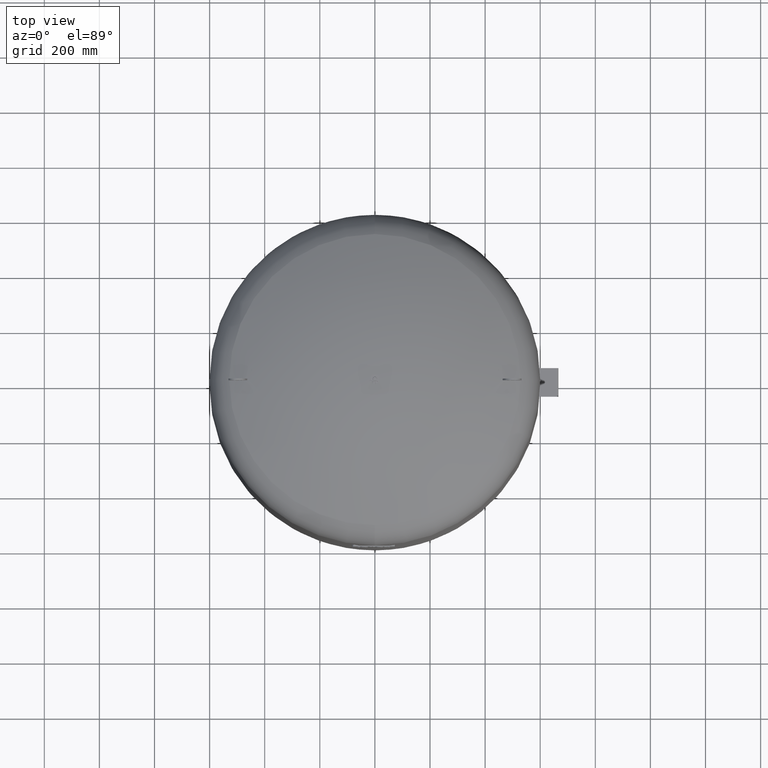
[diagram: clean part render]
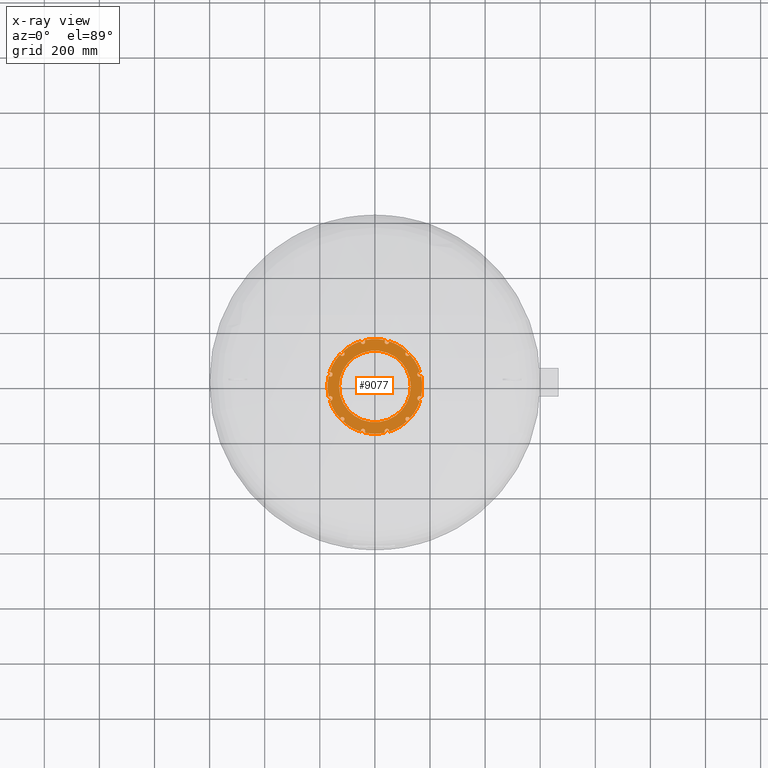
[diagram: x-ray — body ghosted, one internal face saturated and labeled with its STEP entity id]
A machine part, top view, then the same camera in x-ray: the body is ghosted and one INTERNAL B-rep face — a face not visible from any outside direction — is saturated and labeled: STEP entity #9077.
In plain terms, the highlighted planar face has unit normal (0, 0, -1).
Its self-contained STEP definition (entity closure, byte-faithful):
#3084=CARTESIAN_POINT('',(130.199999999999990,-1.108305E-014,407.0));
#3085=VERTEX_POINT('',#3084);
#3101=CARTESIAN_POINT('',(-130.199999999999990,-2.702743E-014,407.0));
#3102=VERTEX_POINT('',#3101);
#3109=CARTESIAN_POINT('',(0.0,-1.108305E-014,407.0));
#3110=DIRECTION('',(0.0,0.0,1.0));
#3111=DIRECTION('',(1.0,0.0,0.0));
#3112=AXIS2_PLACEMENT_3D('',#3109,#3110,#3111);
#3113=CIRCLE('',#3112,130.199999999999990);
#3114=EDGE_CURVE('',#3085,#3102,#3113,.T.);
#3236=CARTESIAN_POINT('',(-116.731667505312730,126.255773339000750,407.0));
#3237=VERTEX_POINT('',#3236);
#3247=CARTESIAN_POINT('',(-110.440385848746640,118.440385848746840,407.0));
#3248=VERTEX_POINT('',#3247);
#3249=CARTESIAN_POINT('',(-118.440385848746640,118.440385848746840,407.0));
#3250=DIRECTION('',(0.0,0.0,1.0));
#3251=DIRECTION('',(-1.0,0.0,0.0));
#3252=AXIS2_PLACEMENT_3D('',#3249,#3250,#3251);
#3253=CIRCLE('',#3252,8.0);
#3254=EDGE_CURVE('',#3248,#3237,#3253,.T.);
#3467=CARTESIAN_POINT('',(-164.220476155219640,50.974873333368336,407.0));
#3468=VERTEX_POINT('',#3467);
#3478=CARTESIAN_POINT('',(-154.864372673143440,47.352190054672398,407.0));
#3479=VERTEX_POINT('',#3478);
#3480=CARTESIAN_POINT('',(-161.792575903418940,43.352190054672391,407.0));
#3481=DIRECTION('',(-2.651438E-017,-1.530808E-017,1.000000000000000));
#3482=DIRECTION('',(-0.866025403784439,-0.500000000000000,-3.061617E-017));
#3483=AXIS2_PLACEMENT_3D('',#3480,#3481,#3482);
#3484=CIRCLE('',#3483,8.0);
#3485=EDGE_CURVE('',#3479,#3468,#3484,.T.);
#3618=CARTESIAN_POINT('',(-167.706540838680980,-37.964702816218875,407.0));
#3619=VERTEX_POINT('',#3618);
#3629=CARTESIAN_POINT('',(-157.792575903419050,-36.423986824396572,407.0));
#3630=VERTEX_POINT('',#3629);
#3631=CARTESIAN_POINT('',(-161.792575903419050,-43.352190054672079,407.0));
#3632=DIRECTION('',(-2.651438E-017,-4.592425E-017,1.0));
#3633=DIRECTION('',(-0.500000000000000,-0.866025403784439,-5.302876E-017));
#3634=AXIS2_PLACEMENT_3D('',#3631,#3632,#3633);
#3635=CIRCLE('',#3634,8.0);
#3636=EDGE_CURVE('',#3630,#3619,#3635,.T.);
#3769=CARTESIAN_POINT('',(-126.255773339000740,-116.731667505312670,407.0));
#3770=VERTEX_POINT('',#3769);
#3780=CARTESIAN_POINT('',(-118.440385848746890,-110.440385848746640,407.0));
#3781=VERTEX_POINT('',#3780);
#3782=CARTESIAN_POINT('',(-118.440385848746890,-118.440385848746640,407.0));
#3783=DIRECTION('',(0.0,0.0,1.0));
#3784=DIRECTION('',(0.0,-1.0,0.0));
#3785=AXIS2_PLACEMENT_3D('',#3782,#3783,#3784);
#3786=CIRCLE('',#3785,8.0);
#3787=EDGE_CURVE('',#3781,#3770,#3786,.T.);
#3920=CARTESIAN_POINT('',(-50.974873333368357,-164.220476155219590,407.0));
#3921=VERTEX_POINT('',#3920);
#3931=CARTESIAN_POINT('',(-47.352190054672441,-154.864372673143440,407.0));
#3932=VERTEX_POINT('',#3931);
#3933=CARTESIAN_POINT('',(-43.352190054672434,-161.792575903418940,407.0));
#3934=DIRECTION('',(2.651438E-017,-4.592425E-017,1.000000000000000));
#3935=DIRECTION('',(0.500000000000000,-0.866025403784439,-5.302876E-017));
#3936=AXIS2_PLACEMENT_3D('',#3933,#3934,#3935);
#3937=CIRCLE('',#3936,8.0);
#3938=EDGE_CURVE('',#3932,#3921,#3937,.T.);
#4071=CARTESIAN_POINT('',(37.964702816218818,-167.706540838680980,407.0));
#4072=VERTEX_POINT('',#4071);
#4082=CARTESIAN_POINT('',(36.423986824396515,-157.792575903419050,407.0));
#4083=VERTEX_POINT('',#4082);
#4084=CARTESIAN_POINT('',(43.352190054672022,-161.792575903419050,407.0));
#4085=DIRECTION('',(2.651438E-017,-1.530808E-017,1.000000000000000));
#4086=DIRECTION('',(0.866025403784439,-0.500000000000000,-3.061617E-017));
#4087=AXIS2_PLACEMENT_3D('',#4084,#4085,#4086);
#4088=CIRCLE('',#4087,8.0);
#4089=EDGE_CURVE('',#4083,#4072,#4088,.T.);
#4222=CARTESIAN_POINT('',(116.731667505312710,-126.255773339000750,407.0));
#4223=VERTEX_POINT('',#4222);
#4233=CARTESIAN_POINT('',(110.440385848746620,-118.440385848746840,407.0));
#4234=VERTEX_POINT('',#4233);
#4235=CARTESIAN_POINT('',(118.440385848746620,-118.440385848746840,407.0));
#4236=DIRECTION('',(0.0,0.0,1.0));
#4237=DIRECTION('',(1.0,0.0,0.0));
#4238=AXIS2_PLACEMENT_3D('',#4235,#4236,#4237);
#4239=CIRCLE('',#4238,8.0);
#4240=EDGE_CURVE('',#4234,#4223,#4239,.T.);
#4373=CARTESIAN_POINT('',(164.220476155219590,-50.974873333368372,407.0));
#4374=VERTEX_POINT('',#4373);
#4384=CARTESIAN_POINT('',(154.864372673143440,-47.352190054672455,407.0));
#4385=VERTEX_POINT('',#4384);
#4386=CARTESIAN_POINT('',(161.792575903418940,-43.352190054672448,407.0));
#4387=DIRECTION('',(-2.651438E-017,-1.530808E-017,1.000000000000000));
#4388=DIRECTION('',(0.866025403784439,0.500000000000000,3.061617E-017));
#4389=AXIS2_PLACEMENT_3D('',#4386,#4387,#4388);
#4390=CIRCLE('',#4389,8.0);
#4391=EDGE_CURVE('',#4385,#4374,#4390,.T.);
#4524=CARTESIAN_POINT('',(167.706540838681060,37.964702816218789,407.0));
#4525=VERTEX_POINT('',#4524);
#4535=CARTESIAN_POINT('',(157.792575903419050,36.423986824396472,407.0));
#4536=VERTEX_POINT('',#4535);
#4537=CARTESIAN_POINT('',(161.792575903419050,43.352190054671979,407.0));
#4538=DIRECTION('',(-2.651438E-017,-4.592425E-017,1.0));
#4539=DIRECTION('',(0.500000000000000,0.866025403784438,5.302876E-017));
#4540=AXIS2_PLACEMENT_3D('',#4537,#4538,#4539);
#4541=CIRCLE('',#4540,8.0);
#4542=EDGE_CURVE('',#4536,#4525,#4541,.T.);
#4675=CARTESIAN_POINT('',(126.255773339000750,116.731667505312690,407.0));
#4676=VERTEX_POINT('',#4675);
#4686=CARTESIAN_POINT('',(118.440385848746840,110.440385848746600,407.0));
#4687=VERTEX_POINT('',#4686);
#4688=CARTESIAN_POINT('',(118.440385848746840,118.440385848746600,407.0));
#4689=DIRECTION('',(0.0,0.0,1.0));
#4690=DIRECTION('',(0.0,1.0,0.0));
#4691=AXIS2_PLACEMENT_3D('',#4688,#4689,#4690);
#4692=CIRCLE('',#4691,8.000000000000002);
#4693=EDGE_CURVE('',#4687,#4676,#4692,.T.);
#4826=CARTESIAN_POINT('',(50.974873333368436,164.220476155219610,407.0));
#4827=VERTEX_POINT('',#4826);
#4837=CARTESIAN_POINT('',(47.352190054672491,154.864372673143410,407.0));
#4838=VERTEX_POINT('',#4837);
#4839=CARTESIAN_POINT('',(43.352190054672491,161.792575903418910,407.0));
#4840=DIRECTION('',(2.651438E-017,-4.592425E-017,1.0));
#4841=DIRECTION('',(-0.499999999999999,0.866025403784439,5.302876E-017));
#4842=AXIS2_PLACEMENT_3D('',#4839,#4840,#4841);
#4843=CIRCLE('',#4842,8.0);
#4844=EDGE_CURVE('',#4838,#4827,#4843,.T.);
#4977=CARTESIAN_POINT('',(-37.964702816218804,167.706540838681060,407.0));
#4978=VERTEX_POINT('',#4977);
#4988=CARTESIAN_POINT('',(-36.423986824396486,157.792575903419050,407.0));
#4989=VERTEX_POINT('',#4988);
#4990=CARTESIAN_POINT('',(-43.352190054671993,161.792575903419050,407.0));
#4991=DIRECTION('',(2.651438E-017,-1.530808E-017,1.0));
#4992=DIRECTION('',(-0.866025403784438,0.500000000000000,3.061617E-017));
#4993=AXIS2_PLACEMENT_3D('',#4990,#4991,#4992);
#4994=CIRCLE('',#4993,8.0);
#4995=EDGE_CURVE('',#4989,#4978,#4994,.T.);
#5105=CARTESIAN_POINT('',(-50.974873333367938,164.220476155219790,407.0));
#5106=VERTEX_POINT('',#5105);
#5107=CARTESIAN_POINT('',(-43.352190054671993,161.792575903419050,407.0));
#5108=DIRECTION('',(2.651438E-017,-1.530808E-017,1.0));
#5109=DIRECTION('',(-0.866025403784438,0.500000000000000,3.061617E-017));
#5110=AXIS2_PLACEMENT_3D('',#5107,#5108,#5109);
#5111=CIRCLE('',#5110,8.0);
#5112=EDGE_CURVE('',#5106,#4989,#5111,.T.);
#5390=CARTESIAN_POINT('',(37.964702816219322,167.706540838680950,407.0));
#5391=VERTEX_POINT('',#5390);
#5392=CARTESIAN_POINT('',(43.352190054672491,161.792575903418910,407.0));
#5393=DIRECTION('',(2.651438E-017,-4.592425E-017,1.0));
#5394=DIRECTION('',(-0.499999999999999,0.866025403784439,5.302876E-017));
#5395=AXIS2_PLACEMENT_3D('',#5392,#5393,#5394);
#5396=CIRCLE('',#5395,8.0);
#5397=EDGE_CURVE('',#5391,#4838,#5396,.T.);
#5675=CARTESIAN_POINT('',(116.731667505312940,126.255773339000510,407.0));
#5676=VERTEX_POINT('',#5675);
#5677=CARTESIAN_POINT('',(118.440385848746840,118.440385848746600,407.0));
#5678=DIRECTION('',(0.0,0.0,1.0));
#5679=DIRECTION('',(0.0,1.0,0.0));
#5680=AXIS2_PLACEMENT_3D('',#5677,#5678,#5679);
#5681=CIRCLE('',#5680,8.000000000000002);
#5682=EDGE_CURVE('',#5676,#4687,#5681,.T.);
#5960=CARTESIAN_POINT('',(164.220476155219790,50.974873333367924,407.0));
#5961=VERTEX_POINT('',#5960);
#5962=CARTESIAN_POINT('',(161.792575903419050,43.352190054671979,407.0));
#5963=DIRECTION('',(-2.651438E-017,-4.592425E-017,1.0));
#5964=DIRECTION('',(0.500000000000000,0.866025403784438,5.302876E-017));
#5965=AXIS2_PLACEMENT_3D('',#5962,#5963,#5964);
#5966=CIRCLE('',#5965,8.0);
#5967=EDGE_CURVE('',#5961,#4536,#5966,.T.);
#6245=CARTESIAN_POINT('',(167.706540838680920,-37.964702816219258,407.0));
#6246=VERTEX_POINT('',#6245);
#6247=CARTESIAN_POINT('',(161.792575903418940,-43.352190054672448,407.0));
#6248=DIRECTION('',(-2.651438E-017,-1.530808E-017,1.000000000000000));
#6249=DIRECTION('',(0.866025403784439,0.500000000000000,3.061617E-017));
#6250=AXIS2_PLACEMENT_3D('',#6247,#6248,#6249);
#6251=CIRCLE('',#6250,8.0);
#6252=EDGE_CURVE('',#6246,#4385,#6251,.T.);
#6530=CARTESIAN_POINT('',(126.255773339000530,-116.731667505312940,407.0));
#6531=VERTEX_POINT('',#6530);
#6532=CARTESIAN_POINT('',(118.440385848746620,-118.440385848746840,407.0));
#6533=DIRECTION('',(0.0,0.0,1.0));
#6534=DIRECTION('',(1.0,0.0,0.0));
#6535=AXIS2_PLACEMENT_3D('',#6532,#6533,#6534);
#6536=CIRCLE('',#6535,8.0);
#6537=EDGE_CURVE('',#6531,#4234,#6536,.T.);
#6815=CARTESIAN_POINT('',(50.974873333367945,-164.220476155219730,407.0));
#6816=VERTEX_POINT('',#6815);
#6817=CARTESIAN_POINT('',(43.352190054672022,-161.792575903419050,407.0));
#6818=DIRECTION('',(2.651438E-017,-1.530808E-017,1.000000000000000));
#6819=DIRECTION('',(0.866025403784439,-0.500000000000000,-3.061617E-017));
#6820=AXIS2_PLACEMENT_3D('',#6817,#6818,#6819);
#6821=CIRCLE('',#6820,8.0);
#6822=EDGE_CURVE('',#6816,#4083,#6821,.T.);
#7100=CARTESIAN_POINT('',(-37.964702816219244,-167.706540838680920,407.0));
#7101=VERTEX_POINT('',#7100);
#7102=CARTESIAN_POINT('',(-43.352190054672434,-161.792575903418940,407.0));
#7103=DIRECTION('',(2.651438E-017,-4.592425E-017,1.000000000000000));
#7104=DIRECTION('',(0.500000000000000,-0.866025403784439,-5.302876E-017));
#7105=AXIS2_PLACEMENT_3D('',#7102,#7103,#7104);
#7106=CIRCLE('',#7105,8.0);
#7107=EDGE_CURVE('',#7101,#3932,#7106,.T.);
#7385=CARTESIAN_POINT('',(-116.731667505312930,-126.255773339000480,407.0));
#7386=VERTEX_POINT('',#7385);
#7387=CARTESIAN_POINT('',(-118.440385848746890,-118.440385848746640,407.0));
#7388=DIRECTION('',(0.0,0.0,1.0));
#7389=DIRECTION('',(0.0,-1.0,0.0));
#7390=AXIS2_PLACEMENT_3D('',#7387,#7388,#7389);
#7391=CIRCLE('',#7390,8.0);
#7392=EDGE_CURVE('',#7386,#3781,#7391,.T.);
#7670=CARTESIAN_POINT('',(-164.220476155219730,-50.974873333368009,407.0));
#7671=VERTEX_POINT('',#7670);
#7672=CARTESIAN_POINT('',(-161.792575903419050,-43.352190054672079,407.0));
#7673=DIRECTION('',(-2.651438E-017,-4.592425E-017,1.0));
#7674=DIRECTION('',(-0.500000000000000,-0.866025403784439,-5.302876E-017));
#7675=AXIS2_PLACEMENT_3D('',#7672,#7673,#7674);
#7676=CIRCLE('',#7675,8.0);
#7677=EDGE_CURVE('',#7671,#3630,#7676,.T.);
#7955=CARTESIAN_POINT('',(-167.706540838680980,37.964702816219216,407.0));
#7956=VERTEX_POINT('',#7955);
#7957=CARTESIAN_POINT('',(-161.792575903418940,43.352190054672391,407.0));
#7958=DIRECTION('',(-2.651438E-017,-1.530808E-017,1.000000000000000));
#7959=DIRECTION('',(-0.866025403784439,-0.500000000000000,-3.061617E-017));
#7960=AXIS2_PLACEMENT_3D('',#7957,#7958,#7959);
#7961=CIRCLE('',#7960,8.0);
#7962=EDGE_CURVE('',#7956,#3479,#7961,.T.);
#8347=CARTESIAN_POINT('',(0.0,-1.108305E-014,407.0));
#8348=DIRECTION('',(0.0,0.0,1.0));
#8349=DIRECTION('',(1.0,0.0,0.0));
#8350=AXIS2_PLACEMENT_3D('',#8347,#8348,#8349);
#8351=CIRCLE('',#8350,171.949999999999990);
#8352=EDGE_CURVE('',#5106,#3237,#8351,.T.);
#8367=CARTESIAN_POINT('',(-126.255773339000540,116.731667505312940,407.0));
#8368=VERTEX_POINT('',#8367);
#8378=CARTESIAN_POINT('',(0.0,-1.108305E-014,407.0));
#8379=DIRECTION('',(0.0,0.0,1.0));
#8380=DIRECTION('',(1.0,0.0,0.0));
#8381=AXIS2_PLACEMENT_3D('',#8378,#8379,#8380);
#8382=CIRCLE('',#8381,171.949999999999990);
#8383=EDGE_CURVE('',#8368,#3468,#8382,.T.);
#8397=CARTESIAN_POINT('',(0.0,-1.108305E-014,407.0));
#8398=DIRECTION('',(0.0,0.0,1.0));
#8399=DIRECTION('',(1.0,0.0,0.0));
#8400=AXIS2_PLACEMENT_3D('',#8397,#8398,#8399);
#8401=CIRCLE('',#8400,171.949999999999990);
#8402=EDGE_CURVE('',#7956,#3619,#8401,.T.);
#8416=CARTESIAN_POINT('',(0.0,-1.108305E-014,407.0));
#8417=DIRECTION('',(0.0,0.0,1.0));
#8418=DIRECTION('',(1.0,0.0,0.0));
#8419=AXIS2_PLACEMENT_3D('',#8416,#8417,#8418);
#8420=CIRCLE('',#8419,171.949999999999990);
#8421=EDGE_CURVE('',#7671,#3770,#8420,.T.);
#8435=CARTESIAN_POINT('',(0.0,-1.108305E-014,407.0));
#8436=DIRECTION('',(0.0,0.0,1.0));
#8437=DIRECTION('',(1.0,0.0,0.0));
#8438=AXIS2_PLACEMENT_3D('',#8435,#8436,#8437);
#8439=CIRCLE('',#8438,171.949999999999990);
#8440=EDGE_CURVE('',#7386,#3921,#8439,.T.);
#8454=CARTESIAN_POINT('',(0.0,-1.108305E-014,407.0));
#8455=DIRECTION('',(0.0,0.0,1.0));
#8456=DIRECTION('',(1.0,0.0,0.0));
#8457=AXIS2_PLACEMENT_3D('',#8454,#8455,#8456);
#8458=CIRCLE('',#8457,171.949999999999990);
#8459=EDGE_CURVE('',#7101,#4072,#8458,.T.);
#8473=CARTESIAN_POINT('',(0.0,-1.108305E-014,407.0));
#8474=DIRECTION('',(0.0,0.0,1.0));
#8475=DIRECTION('',(1.0,0.0,0.0));
#8476=AXIS2_PLACEMENT_3D('',#8473,#8474,#8475);
#8477=CIRCLE('',#8476,171.949999999999990);
#8478=EDGE_CURVE('',#6816,#4223,#8477,.T.);
#8492=CARTESIAN_POINT('',(0.0,-1.108305E-014,407.0));
#8493=DIRECTION('',(0.0,0.0,1.0));
#8494=DIRECTION('',(1.0,0.0,0.0));
#8495=AXIS2_PLACEMENT_3D('',#8492,#8493,#8494);
#8496=CIRCLE('',#8495,171.949999999999990);
#8497=EDGE_CURVE('',#6531,#4374,#8496,.T.);
#8511=CARTESIAN_POINT('',(0.0,-1.108305E-014,407.0));
#8512=DIRECTION('',(0.0,0.0,1.0));
#8513=DIRECTION('',(1.0,0.0,0.0));
#8514=AXIS2_PLACEMENT_3D('',#8511,#8512,#8513);
#8515=CIRCLE('',#8514,171.949999999999990);
#8516=EDGE_CURVE('',#6246,#4525,#8515,.T.);
#8530=CARTESIAN_POINT('',(0.0,-1.108305E-014,407.0));
#8531=DIRECTION('',(0.0,0.0,1.0));
#8532=DIRECTION('',(1.0,0.0,0.0));
#8533=AXIS2_PLACEMENT_3D('',#8530,#8531,#8532);
#8534=CIRCLE('',#8533,171.949999999999990);
#8535=EDGE_CURVE('',#5961,#4676,#8534,.T.);
#8549=CARTESIAN_POINT('',(0.0,-1.108305E-014,407.0));
#8550=DIRECTION('',(0.0,0.0,1.0));
#8551=DIRECTION('',(1.0,0.0,0.0));
#8552=AXIS2_PLACEMENT_3D('',#8549,#8550,#8551);
#8553=CIRCLE('',#8552,171.949999999999990);
#8554=EDGE_CURVE('',#5676,#4827,#8553,.T.);
#8823=CARTESIAN_POINT('',(-118.440385848746640,118.440385848746840,407.0));
#8824=DIRECTION('',(0.0,0.0,1.0));
#8825=DIRECTION('',(-1.0,0.0,0.0));
#8826=AXIS2_PLACEMENT_3D('',#8823,#8824,#8825);
#8827=CIRCLE('',#8826,8.0);
#8828=EDGE_CURVE('',#8368,#3248,#8827,.T.);
#9012=CARTESIAN_POINT('',(0.0,-1.108305E-014,407.0));
#9013=DIRECTION('',(0.0,0.0,1.0));
#9014=DIRECTION('',(1.0,0.0,0.0));
#9015=AXIS2_PLACEMENT_3D('',#9012,#9013,#9014);
#9016=CIRCLE('',#9015,130.199999999999990);
#9017=EDGE_CURVE('',#3102,#3085,#9016,.T.);
#9024=CARTESIAN_POINT('',(151.074999999999990,-1.108305E-014,407.0));
#9025=DIRECTION('',(0.0,0.0,-1.0));
#9026=DIRECTION('',(0.0,1.0,0.0));
#9027=AXIS2_PLACEMENT_3D('',#9024,#9025,#9026);
#9028=PLANE('',#9027);
#9029=ORIENTED_EDGE('',*,*,#5112,.T.);
#9030=ORIENTED_EDGE('',*,*,#4995,.T.);
#9031=CARTESIAN_POINT('',(0.0,-1.108305E-014,407.0));
#9032=DIRECTION('',(0.0,0.0,1.0));
#9033=DIRECTION('',(1.0,0.0,0.0));
#9034=AXIS2_PLACEMENT_3D('',#9031,#9032,#9033);
#9035=CIRCLE('',#9034,171.949999999999990);
#9036=EDGE_CURVE('',#5391,#4978,#9035,.T.);
#9037=ORIENTED_EDGE('',*,*,#9036,.F.);
#9038=ORIENTED_EDGE('',*,*,#5397,.T.);
#9039=ORIENTED_EDGE('',*,*,#4844,.T.);
#9040=ORIENTED_EDGE('',*,*,#8554,.F.);
#9041=ORIENTED_EDGE('',*,*,#5682,.T.);
#9042=ORIENTED_EDGE('',*,*,#4693,.T.);
#9043=ORIENTED_EDGE('',*,*,#8535,.F.);
#9044=ORIENTED_EDGE('',*,*,#5967,.T.);
#9045=ORIENTED_EDGE('',*,*,#4542,.T.);
#9046=ORIENTED_EDGE('',*,*,#8516,.F.);
#9047=ORIENTED_EDGE('',*,*,#6252,.T.);
#9048=ORIENTED_EDGE('',*,*,#4391,.T.);
#9049=ORIENTED_EDGE('',*,*,#8497,.F.);
#9050=ORIENTED_EDGE('',*,*,#6537,.T.);
#9051=ORIENTED_EDGE('',*,*,#4240,.T.);
#9052=ORIENTED_EDGE('',*,*,#8478,.F.);
#9053=ORIENTED_EDGE('',*,*,#6822,.T.);
#9054=ORIENTED_EDGE('',*,*,#4089,.T.);
#9055=ORIENTED_EDGE('',*,*,#8459,.F.);
#9056=ORIENTED_EDGE('',*,*,#7107,.T.);
#9057=ORIENTED_EDGE('',*,*,#3938,.T.);
#9058=ORIENTED_EDGE('',*,*,#8440,.F.);
#9059=ORIENTED_EDGE('',*,*,#7392,.T.);
#9060=ORIENTED_EDGE('',*,*,#3787,.T.);
#9061=ORIENTED_EDGE('',*,*,#8421,.F.);
#9062=ORIENTED_EDGE('',*,*,#7677,.T.);
#9063=ORIENTED_EDGE('',*,*,#3636,.T.);
#9064=ORIENTED_EDGE('',*,*,#8402,.F.);
#9065=ORIENTED_EDGE('',*,*,#7962,.T.);
#9066=ORIENTED_EDGE('',*,*,#3485,.T.);
#9067=ORIENTED_EDGE('',*,*,#8383,.F.);
#9068=ORIENTED_EDGE('',*,*,#8828,.T.);
#9069=ORIENTED_EDGE('',*,*,#3254,.T.);
#9070=ORIENTED_EDGE('',*,*,#8352,.F.);
#9071=EDGE_LOOP('',(#9029,#9030,#9037,#9038,#9039,#9040,#9041,#9042,#9043,#9044,#9045,#9046,#9047,#9048,#9049,#9050,#9051,#9052,#9053,#9054,#9055,#9056,#9057,#9058,#9059,#9060,#9061,#9062,#9063,#9064,#9065,#9066,#9067,#9068,#9069,#9070));
#9072=FACE_OUTER_BOUND('',#9071,.T.);
#9073=ORIENTED_EDGE('',*,*,#3114,.T.);
#9074=ORIENTED_EDGE('',*,*,#9017,.T.);
#9075=EDGE_LOOP('',(#9073,#9074));
#9076=FACE_BOUND('',#9075,.T.);
#9077=ADVANCED_FACE('',(#9072,#9076),#9028,.T.);